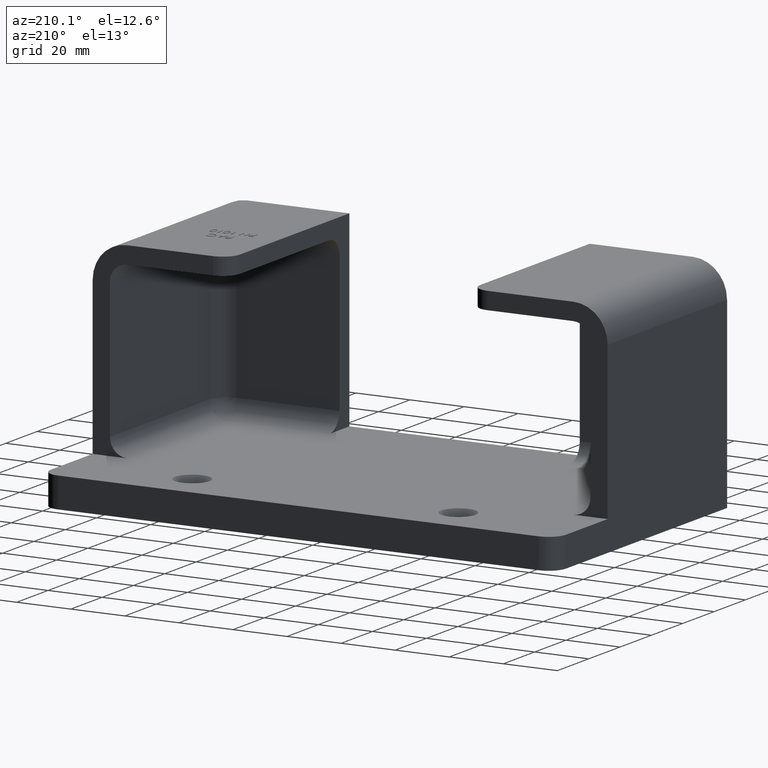
[diagram: clean part render]
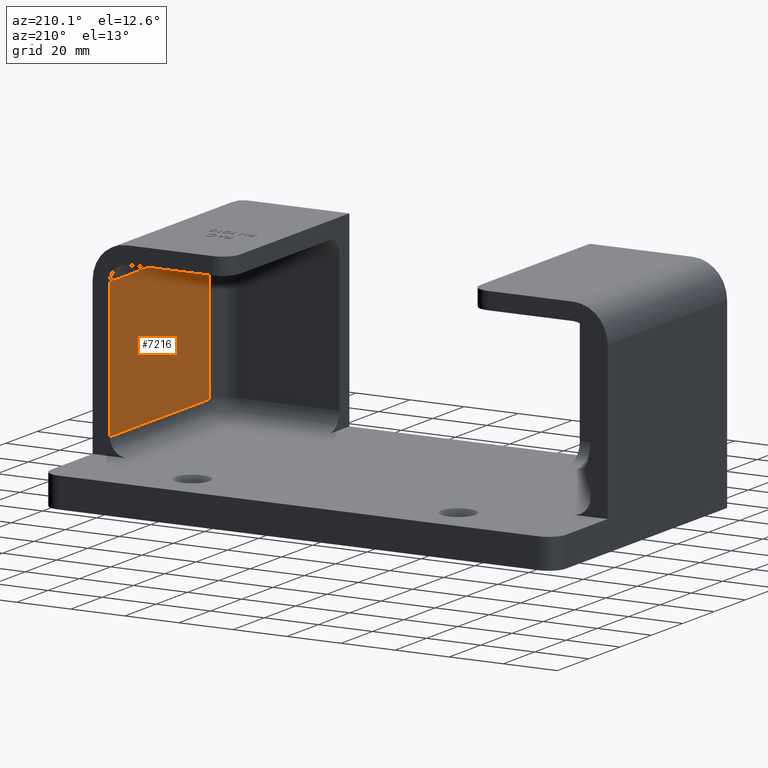
[diagram: same view with one face highlighted and labeled with its STEP entity id]
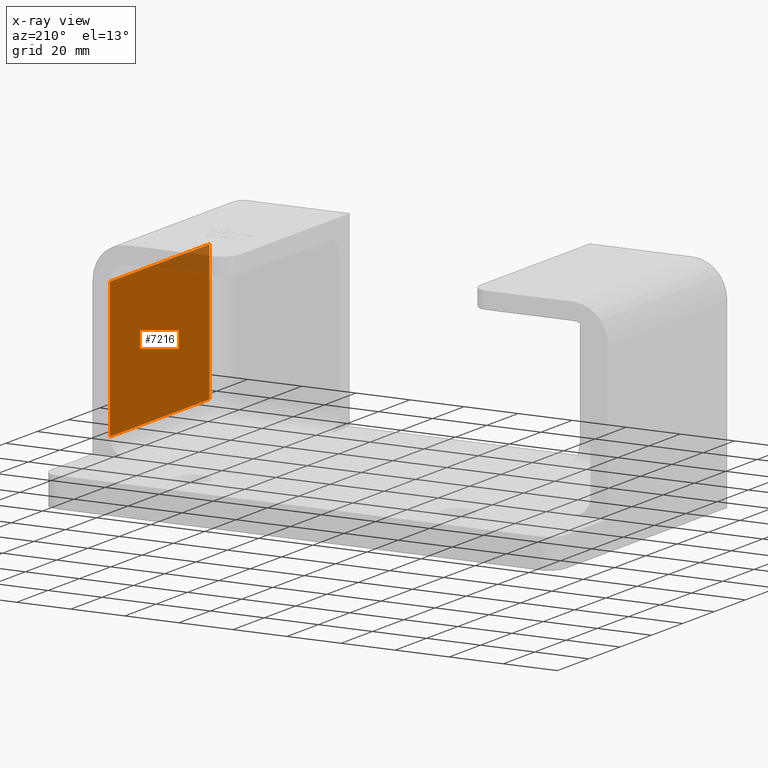
[diagram: x-ray of the same camera — body ghosted, the highlighted face saturated]
A machine part, auxiliary view. The second image highlights one B-rep face of the part: STEP entity #7216.
The next image is the same camera in x-ray: the body ghosted, the highlighted face saturated — about 6% of this face is hidden behind the body in this view.
In plain terms, the highlighted planar face has unit normal (-1, 0, -0).
Its self-contained STEP definition (entity closure, byte-faithful):
#94 = ORIENTED_EDGE ( 'NONE', *, *, #2886, .T. ) ;
#147 = EDGE_LOOP ( 'NONE', ( #1920, #94, #1907, #1420 ) ) ;
#716 = VECTOR ( 'NONE', #946, 39.37007874015748100 ) ;
#721 = VECTOR ( 'NONE', #951, 39.37007874015748100 ) ;
#722 = LINE ( 'NONE', #950, #721 ) ;
#723 = LINE ( 'NONE', #937, #716 ) ;
#725 = LINE ( 'NONE', #942, #727 ) ;
#727 = VECTOR ( 'NONE', #953, 39.37007874015748100 ) ;
#728 = LINE ( 'NONE', #954, #729 ) ;
#729 = VECTOR ( 'NONE', #955, 39.37007874015748100 ) ;
#937 = CARTESIAN_POINT ( 'NONE',  ( 3.499999999999999100, 4.299999999999999800, 2.687499999999999600 ) ) ;
#942 = CARTESIAN_POINT ( 'NONE',  ( 3.500000000000000000, 0.2500000000000000000, 0.6875000000000001100 ) ) ;
#946 = DIRECTION ( 'NONE',  ( -0.0000000000000000000, -1.000000000000000000, -0.0000000000000000000 ) ) ;
#950 = CARTESIAN_POINT ( 'NONE',  ( 3.500000000000000400, 0.5000000000000001100, -1.016501579037865500E-016 ) ) ;
#951 = DIRECTION ( 'NONE',  ( -4.066006316151462300E-016, -0.0000000000000000000, 1.000000000000000000 ) ) ;
#953 = DIRECTION ( 'NONE',  ( -0.0000000000000000000, -1.000000000000000000, -0.0000000000000000000 ) ) ;
#954 = CARTESIAN_POINT ( 'NONE',  ( 3.500000000000000400, 3.000000000000000400, -1.016501579037865500E-016 ) ) ;
#955 = DIRECTION ( 'NONE',  ( -4.066006316151462300E-016, 0.0000000000000000000, 1.000000000000000000 ) ) ;
#1420 = ORIENTED_EDGE ( 'NONE', *, *, #2888, .F. ) ;
#1907 = ORIENTED_EDGE ( 'NONE', *, *, #2884, .F. ) ;
#1920 = ORIENTED_EDGE ( 'NONE', *, *, #2887, .T. ) ;
#2375 = AXIS2_PLACEMENT_3D ( 'NONE', #4831, #4844, #4845 ) ;
#2884 = EDGE_CURVE ( 'NONE', #5458, #5459, #723, .T. ) ;
#2886 = EDGE_CURVE ( 'NONE', #5461, #5459, #722, .T. ) ;
#2887 = EDGE_CURVE ( 'NONE', #5460, #5461, #725, .T. ) ;
#2888 = EDGE_CURVE ( 'NONE', #5460, #5458, #728, .T. ) ;
#4568 = FACE_OUTER_BOUND ( 'NONE', #147, .T. ) ;
#4831 = CARTESIAN_POINT ( 'NONE',  ( 3.500000000000000400, 4.299999999999999800, -1.016501579037865500E-016 ) ) ;
#4839 = PLANE ( 'NONE',  #2375 ) ;
#4844 = DIRECTION ( 'NONE',  ( -1.000000000000000000, 0.0000000000000000000, -4.066006316151462300E-016 ) ) ;
#4845 = DIRECTION ( 'NONE',  ( -4.066006316151462300E-016, 0.0000000000000000000, 1.000000000000000000 ) ) ;
#5458 = VERTEX_POINT ( 'NONE', #6295 ) ;
#5459 = VERTEX_POINT ( 'NONE', #6296 ) ;
#5460 = VERTEX_POINT ( 'NONE', #6297 ) ;
#5461 = VERTEX_POINT ( 'NONE', #6298 ) ;
#6295 = CARTESIAN_POINT ( 'NONE',  ( 3.499999999999999100, 3.000000000000000400, 2.687499999999999600 ) ) ;
#6296 = CARTESIAN_POINT ( 'NONE',  ( 3.499999999999999100, 0.5000000000000001100, 2.687499999999999600 ) ) ;
#6297 = CARTESIAN_POINT ( 'NONE',  ( 3.500000000000000000, 3.000000000000000400, 0.6875000000000001100 ) ) ;
#6298 = CARTESIAN_POINT ( 'NONE',  ( 3.500000000000000000, 0.5000000000000000000, 0.6875000000000001100 ) ) ;
#7216 = ADVANCED_FACE ( 'NONE', ( #4568 ), #4839, .T. ) ;